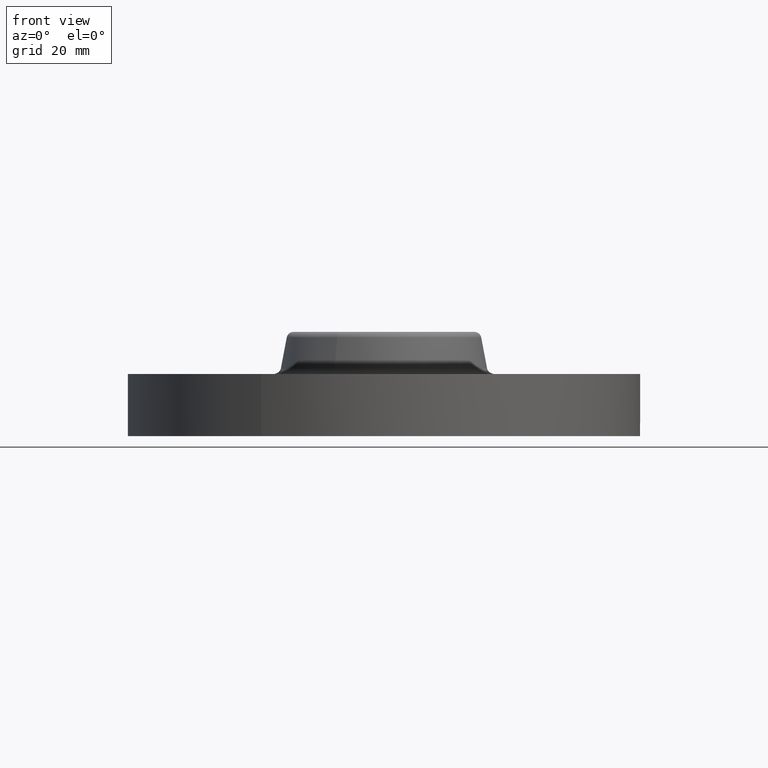
[diagram: clean part render]
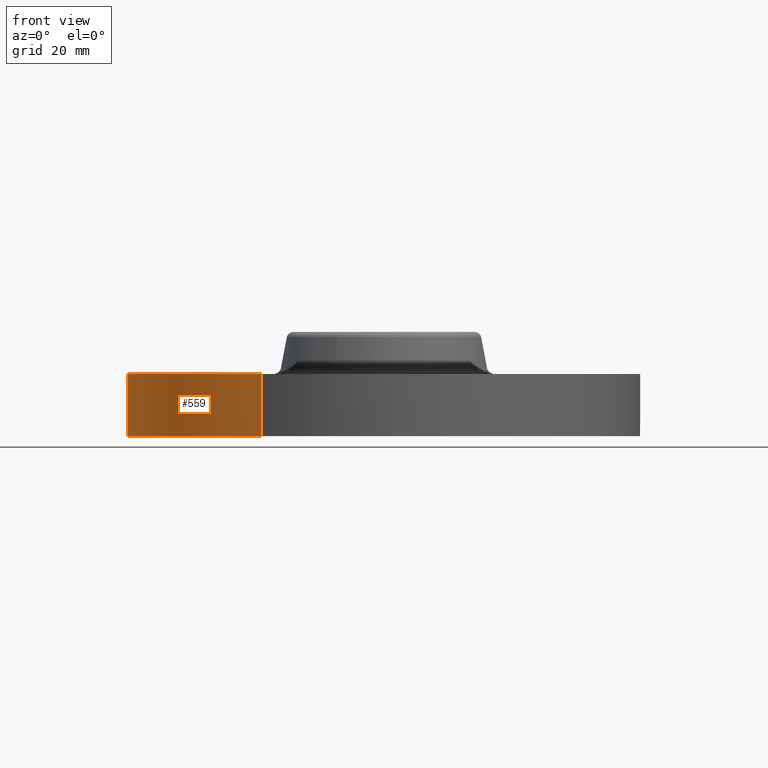
[diagram: same view with one face highlighted and labeled with its STEP entity id]
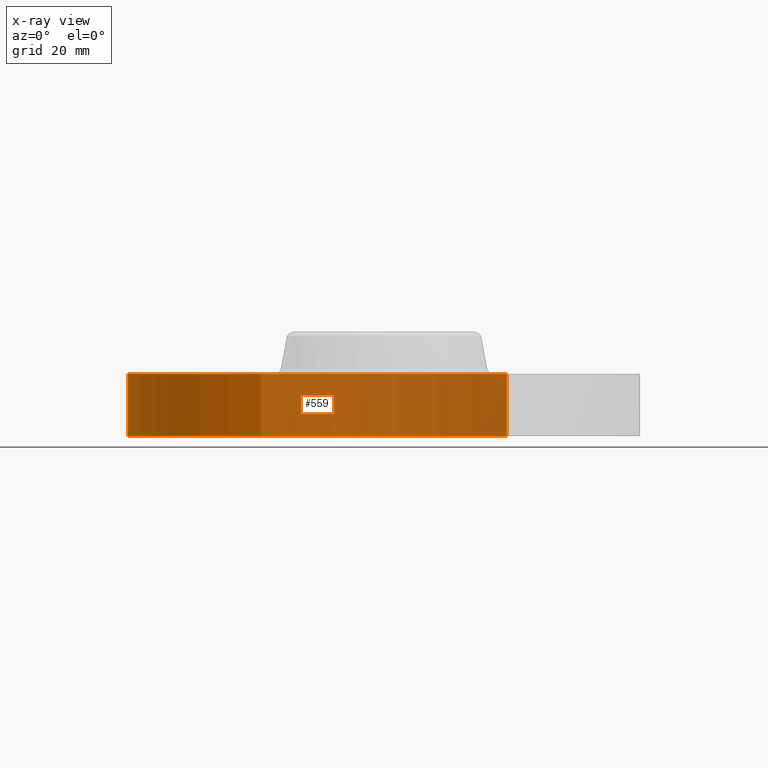
[diagram: x-ray of the same camera — body ghosted, the highlighted face saturated]
A machine part, front view. The second image highlights one B-rep face of the part: STEP entity #559.
The next image is the same camera in x-ray: the body ghosted, the highlighted face saturated — about 65% of this face is hidden behind the body in this view.
In plain terms, the highlighted cylindrical surface (partial cylindrical patch) has radius 58.674 mm, axis along (0, 0, -1).
Its self-contained STEP definition (entity closure, byte-faithful):
#367=AXIS2_PLACEMENT_3D('Circle Axis2P3D',#365,#366,$) ;
#532=AXIS2_PLACEMENT_3D('Cylinder Axis2P3D',#529,#530,#531) ;
#543=AXIS2_PLACEMENT_3D('Circle Axis2P3D',#541,#542,$) ;
#365=CARTESIAN_POINT('Axis2P3D Location',(-5.59482469102E-016,-1.6482633281E-011,0.)) ;
#369=CARTESIAN_POINT('Vertex',(-1.10747299421,-2.02721571801,0.)) ;
#371=CARTESIAN_POINT('Vertex',(1.10747299421,2.02721571797,0.)) ;
#529=CARTESIAN_POINT('Axis2P3D Location',(0.,0.,0.470000000002)) ;
#534=CARTESIAN_POINT('Line Origine',(-1.10747299418,-2.02721571798,0.280000000025)) ;
#538=CARTESIAN_POINT('Vertex',(-1.10747299418,-2.02721571798,0.560000000014)) ;
#541=CARTESIAN_POINT('Axis2P3D Location',(0.,0.,0.560000000014)) ;
#545=CARTESIAN_POINT('Vertex',(1.10747299418,2.02721571798,0.560000000014)) ;
#548=CARTESIAN_POINT('Line Origine',(1.10747299418,2.02721571798,0.280000000025)) ;
#366=DIRECTION('Axis2P3D Direction',(0.,0.,-0.0393700787402)) ;
#530=DIRECTION('Axis2P3D Direction',(0.,0.,-0.0393700787402)) ;
#531=DIRECTION('Axis2P3D XDirection',(-0.0188750212049,-0.0345504945626,0.)) ;
#535=DIRECTION('Vector Direction',(0.,0.,-0.0393700787402)) ;
#542=DIRECTION('Axis2P3D Direction',(0.,0.,-0.0393700787402)) ;
#549=DIRECTION('Vector Direction',(0.,0.,-0.0393700787402)) ;
#536=VECTOR('Line Direction',#535,0.0393700787402) ;
#550=VECTOR('Line Direction',#549,0.0393700787402) ;
#554=ORIENTED_EDGE('',*,*,#373,.F.) ;
#555=ORIENTED_EDGE('',*,*,#540,.T.) ;
#556=ORIENTED_EDGE('',*,*,#547,.T.) ;
#557=ORIENTED_EDGE('',*,*,#552,.F.) ;
#559=ADVANCED_FACE('PartBody',(#558),#533,.T.) ;
#368=CIRCLE('generated circle',#367,2.31000000004) ;
#544=CIRCLE('generated circle',#543,2.31000000001) ;
#533=CYLINDRICAL_SURFACE('generated cylinder',#532,2.31000000001) ;
#373=EDGE_CURVE('',#370,#372,#368,.T.) ;
#540=EDGE_CURVE('',#370,#539,#537,.F.) ;
#547=EDGE_CURVE('',#539,#546,#544,.T.) ;
#552=EDGE_CURVE('',#372,#546,#551,.F.) ;
#553=EDGE_LOOP('',(#554,#555,#556,#557)) ;
#558=FACE_OUTER_BOUND('',#553,.T.) ;
#537=LINE('Line',#534,#536) ;
#551=LINE('Line',#548,#550) ;
#370=VERTEX_POINT('',#369) ;
#372=VERTEX_POINT('',#371) ;
#539=VERTEX_POINT('',#538) ;
#546=VERTEX_POINT('',#545) ;